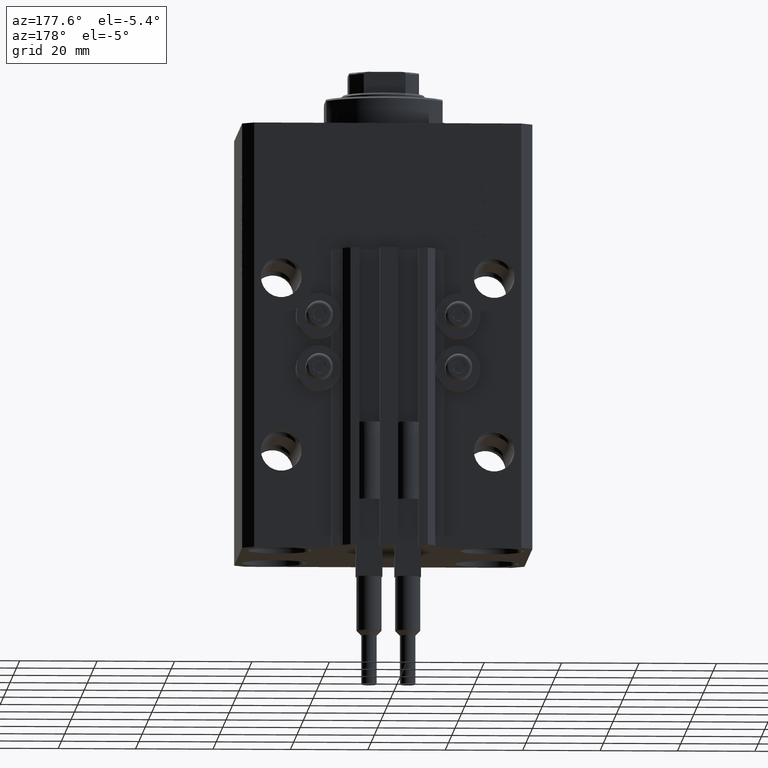
[diagram: clean part render]
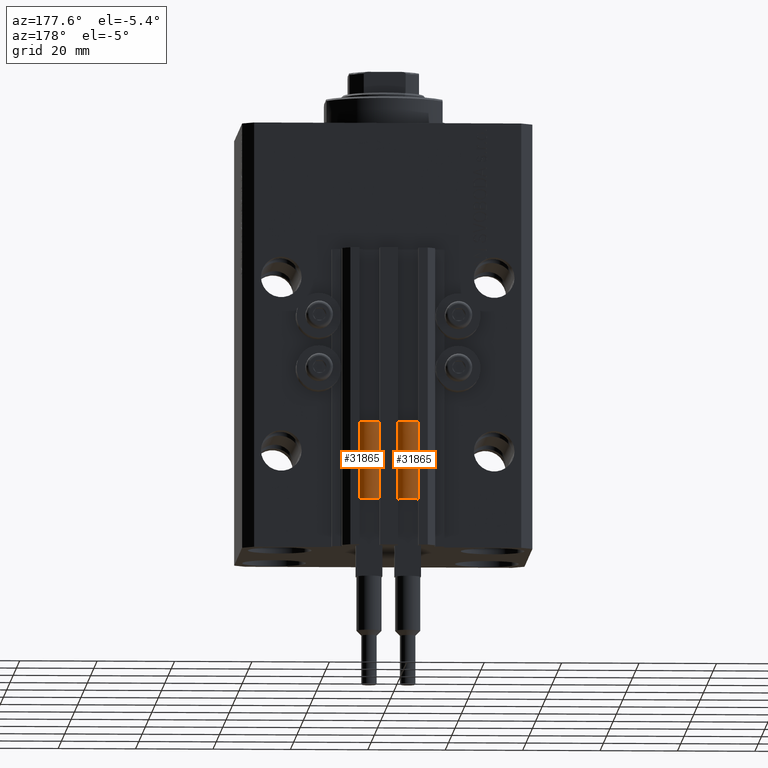
[diagram: same view with one multi-face feature highlighted, each face labeled with its STEP entity id]
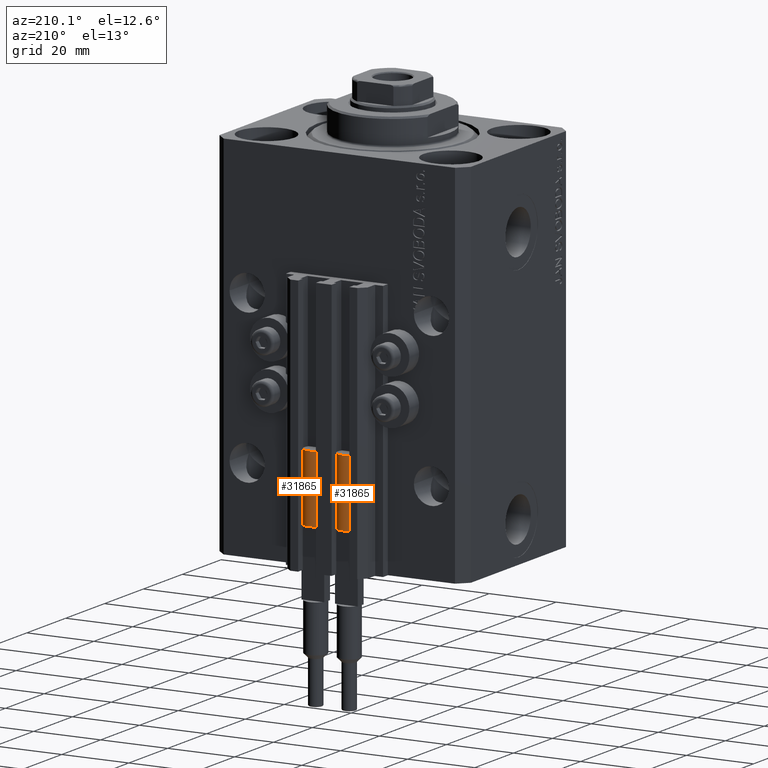
[diagram: same view with one multi-face feature highlighted, each face labeled with its STEP entity id]
A machine part, auxiliary view. The highlighted faces form ONE feature: a constant-radius fillet chain: 2 tangent blend faces with common blend radius 3.4 mm. The faces share edges in the B-rep.
A second angle (auxiliary view) of the same feature is appended — it is thin or edge-on in the first view.
Their STEP definitions:
[1] entity #31865 (Cylinder):
#952 = ORIENTED_EDGE ( 'NONE', *, *, #40758, .F. ) ;
#1548 = FACE_OUTER_BOUND ( 'NONE', #18016, .T. ) ;
#2147 = AXIS2_PLACEMENT_3D ( 'NONE', #43171, #24428, #35410 ) ;
#2510 = CYLINDRICAL_SURFACE ( 'NONE', #2147, 3.400000000000000355 ) ;
#5166 = LINE ( 'NONE', #46299, #41202 ) ;
#5280 = AXIS2_PLACEMENT_3D ( 'NONE', #40405, #7046, #36774 ) ;
#7046 = DIRECTION ( 'NONE',  ( 0.000000000000000000, 0.000000000000000000, 1.000000000000000000 ) ) ;
#7896 = CARTESIAN_POINT ( 'NONE',  ( -3.399999999999999467, -4.915049848600952119E-16, 20.00000000000000000 ) ) ;
#9325 = EDGE_CURVE ( 'NONE', #25384, #10831, #26281, .T. ) ;
#10719 = CIRCLE ( 'NONE', #13030, 3.400000000000000355 ) ;
#10831 = VERTEX_POINT ( 'NONE', #30315 ) ;
#10996 = CARTESIAN_POINT ( 'NONE',  ( -3.400000000000000355, 0.000000000000000000, 20.00000000000000000 ) ) ;
#11345 = CARTESIAN_POINT ( 'NONE',  ( -3.400000000000000355, 0.000000000000000000, 0.000000000000000000 ) ) ;
#12481 = AXIS2_PLACEMENT_3D ( 'NONE', #36822, #35847, #21932 ) ;
#12654 = CARTESIAN_POINT ( 'NONE',  ( 0.000000000000000000, 0.000000000000000000, 20.00000000000000000 ) ) ;
#13030 = AXIS2_PLACEMENT_3D ( 'NONE', #12654, #38720, #15584 ) ;
#14195 = AXIS2_PLACEMENT_3D ( 'NONE', #40780, #22256, #40290 ) ;
#14437 = ORIENTED_EDGE ( 'NONE', *, *, #9325, .F. ) ;
#15584 = DIRECTION ( 'NONE',  ( 1.000000000000000000, 0.000000000000000000, 0.000000000000000000 ) ) ;
#16200 = CARTESIAN_POINT ( 'NONE',  ( 3.400000000000000355, 0.000000000000000000, 20.00000000000000000 ) ) ;
#16902 = VERTEX_POINT ( 'NONE', #17804 ) ;
#17804 = CARTESIAN_POINT ( 'NONE',  ( 3.400000000000000355, 4.163799117101001052E-16, 0.000000000000000000 ) ) ;
#18016 = EDGE_LOOP ( 'NONE', ( #21834, #45693, #20578, #38394, #952, #14437 ) ) ;
#20578 = ORIENTED_EDGE ( 'NONE', *, *, #23290, .T. ) ;
#21022 = CIRCLE ( 'NONE', #12481, 3.400000000000000355 ) ;
#21169 = VERTEX_POINT ( 'NONE', #16200 ) ;
#21834 = ORIENTED_EDGE ( 'NONE', *, *, #31465, .F. ) ;
#21932 = DIRECTION ( 'NONE',  ( 1.000000000000000000, 0.000000000000000000, 0.000000000000000000 ) ) ;
#22256 = DIRECTION ( 'NONE',  ( 0.000000000000000000, 0.000000000000000000, 1.000000000000000000 ) ) ;
#23290 = EDGE_CURVE ( 'NONE', #16902, #32609, #32848, .T. ) ;
#24428 = DIRECTION ( 'NONE',  ( -0.000000000000000000, -0.000000000000000000, -1.000000000000000000 ) ) ;
#25384 = VERTEX_POINT ( 'NONE', #46298 ) ;
#26281 = CIRCLE ( 'NONE', #5280, 3.400000000000000355 ) ;
#27863 = VERTEX_POINT ( 'NONE', #7896 ) ;
#30315 = CARTESIAN_POINT ( 'NONE',  ( -3.051229260478471428, 1.500000000000000000, 20.00000000000000000 ) ) ;
#31465 = EDGE_CURVE ( 'NONE', #21169, #25384, #10719, .T. ) ;
#31865 = ADVANCED_FACE ( 'NONE', ( #1548 ), #2510, .T. ) ;
#32609 = VERTEX_POINT ( 'NONE', #11345 ) ;
#32848 = CIRCLE ( 'NONE', #14195, 3.400000000000000355 ) ;
#33409 = DIRECTION ( 'NONE',  ( -0.000000000000000000, -0.000000000000000000, -1.000000000000000000 ) ) ;
#35410 = DIRECTION ( 'NONE',  ( -1.000000000000000000, 0.000000000000000000, 0.000000000000000000 ) ) ;
#35847 = DIRECTION ( 'NONE',  ( 0.000000000000000000, 0.000000000000000000, 1.000000000000000000 ) ) ;
#36774 = DIRECTION ( 'NONE',  ( 1.000000000000000000, 0.000000000000000000, 0.000000000000000000 ) ) ;
#36822 = CARTESIAN_POINT ( 'NONE',  ( 0.000000000000000000, 0.000000000000000000, 20.00000000000000000 ) ) ;
#38004 = EDGE_CURVE ( 'NONE', #21169, #16902, #5166, .T. ) ;
#38394 = ORIENTED_EDGE ( 'NONE', *, *, #40831, .F. ) ;
#38720 = DIRECTION ( 'NONE',  ( 0.000000000000000000, 0.000000000000000000, 1.000000000000000000 ) ) ;
#39013 = DIRECTION ( 'NONE',  ( -0.000000000000000000, -0.000000000000000000, -1.000000000000000000 ) ) ;
#40290 = DIRECTION ( 'NONE',  ( 1.000000000000000000, 0.000000000000000000, 0.000000000000000000 ) ) ;
#40405 = CARTESIAN_POINT ( 'NONE',  ( 0.000000000000000000, 0.000000000000000000, 20.00000000000000000 ) ) ;
#40758 = EDGE_CURVE ( 'NONE', #10831, #27863, #21022, .T. ) ;
#40780 = CARTESIAN_POINT ( 'NONE',  ( 0.000000000000000000, 0.000000000000000000, 0.000000000000000000 ) ) ;
#40831 = EDGE_CURVE ( 'NONE', #27863, #32609, #41658, .T. ) ;
#41202 = VECTOR ( 'NONE', #39013, 1000.000000000000000 ) ;
#41275 = VECTOR ( 'NONE', #33409, 1000.000000000000000 ) ;
#41658 = LINE ( 'NONE', #10996, #41275 ) ;
#43171 = CARTESIAN_POINT ( 'NONE',  ( 0.000000000000000000, 0.000000000000000000, 20.00000000000000000 ) ) ;
#45693 = ORIENTED_EDGE ( 'NONE', *, *, #38004, .T. ) ;
#46298 = CARTESIAN_POINT ( 'NONE',  ( 3.051229260478471428, 1.500000000000000000, 20.00000000000000000 ) ) ;
#46299 = CARTESIAN_POINT ( 'NONE',  ( 3.400000000000000355, 4.163799117101001052E-16, 20.00000000000000000 ) ) ;
[2] entity #31865 (Cylinder):
#952 = ORIENTED_EDGE ( 'NONE', *, *, #40758, .F. ) ;
#1548 = FACE_OUTER_BOUND ( 'NONE', #18016, .T. ) ;
#2147 = AXIS2_PLACEMENT_3D ( 'NONE', #43171, #24428, #35410 ) ;
#2510 = CYLINDRICAL_SURFACE ( 'NONE', #2147, 3.400000000000000355 ) ;
#5166 = LINE ( 'NONE', #46299, #41202 ) ;
#5280 = AXIS2_PLACEMENT_3D ( 'NONE', #40405, #7046, #36774 ) ;
#7046 = DIRECTION ( 'NONE',  ( 0.000000000000000000, 0.000000000000000000, 1.000000000000000000 ) ) ;
#7896 = CARTESIAN_POINT ( 'NONE',  ( -3.399999999999999467, -4.915049848600952119E-16, 20.00000000000000000 ) ) ;
#9325 = EDGE_CURVE ( 'NONE', #25384, #10831, #26281, .T. ) ;
#10719 = CIRCLE ( 'NONE', #13030, 3.400000000000000355 ) ;
#10831 = VERTEX_POINT ( 'NONE', #30315 ) ;
#10996 = CARTESIAN_POINT ( 'NONE',  ( -3.400000000000000355, 0.000000000000000000, 20.00000000000000000 ) ) ;
#11345 = CARTESIAN_POINT ( 'NONE',  ( -3.400000000000000355, 0.000000000000000000, 0.000000000000000000 ) ) ;
#12481 = AXIS2_PLACEMENT_3D ( 'NONE', #36822, #35847, #21932 ) ;
#12654 = CARTESIAN_POINT ( 'NONE',  ( 0.000000000000000000, 0.000000000000000000, 20.00000000000000000 ) ) ;
#13030 = AXIS2_PLACEMENT_3D ( 'NONE', #12654, #38720, #15584 ) ;
#14195 = AXIS2_PLACEMENT_3D ( 'NONE', #40780, #22256, #40290 ) ;
#14437 = ORIENTED_EDGE ( 'NONE', *, *, #9325, .F. ) ;
#15584 = DIRECTION ( 'NONE',  ( 1.000000000000000000, 0.000000000000000000, 0.000000000000000000 ) ) ;
#16200 = CARTESIAN_POINT ( 'NONE',  ( 3.400000000000000355, 0.000000000000000000, 20.00000000000000000 ) ) ;
#16902 = VERTEX_POINT ( 'NONE', #17804 ) ;
#17804 = CARTESIAN_POINT ( 'NONE',  ( 3.400000000000000355, 4.163799117101001052E-16, 0.000000000000000000 ) ) ;
#18016 = EDGE_LOOP ( 'NONE', ( #21834, #45693, #20578, #38394, #952, #14437 ) ) ;
#20578 = ORIENTED_EDGE ( 'NONE', *, *, #23290, .T. ) ;
#21022 = CIRCLE ( 'NONE', #12481, 3.400000000000000355 ) ;
#21169 = VERTEX_POINT ( 'NONE', #16200 ) ;
#21834 = ORIENTED_EDGE ( 'NONE', *, *, #31465, .F. ) ;
#21932 = DIRECTION ( 'NONE',  ( 1.000000000000000000, 0.000000000000000000, 0.000000000000000000 ) ) ;
#22256 = DIRECTION ( 'NONE',  ( 0.000000000000000000, 0.000000000000000000, 1.000000000000000000 ) ) ;
#23290 = EDGE_CURVE ( 'NONE', #16902, #32609, #32848, .T. ) ;
#24428 = DIRECTION ( 'NONE',  ( -0.000000000000000000, -0.000000000000000000, -1.000000000000000000 ) ) ;
#25384 = VERTEX_POINT ( 'NONE', #46298 ) ;
#26281 = CIRCLE ( 'NONE', #5280, 3.400000000000000355 ) ;
#27863 = VERTEX_POINT ( 'NONE', #7896 ) ;
#30315 = CARTESIAN_POINT ( 'NONE',  ( -3.051229260478471428, 1.500000000000000000, 20.00000000000000000 ) ) ;
#31465 = EDGE_CURVE ( 'NONE', #21169, #25384, #10719, .T. ) ;
#31865 = ADVANCED_FACE ( 'NONE', ( #1548 ), #2510, .T. ) ;
#32609 = VERTEX_POINT ( 'NONE', #11345 ) ;
#32848 = CIRCLE ( 'NONE', #14195, 3.400000000000000355 ) ;
#33409 = DIRECTION ( 'NONE',  ( -0.000000000000000000, -0.000000000000000000, -1.000000000000000000 ) ) ;
#35410 = DIRECTION ( 'NONE',  ( -1.000000000000000000, 0.000000000000000000, 0.000000000000000000 ) ) ;
#35847 = DIRECTION ( 'NONE',  ( 0.000000000000000000, 0.000000000000000000, 1.000000000000000000 ) ) ;
#36774 = DIRECTION ( 'NONE',  ( 1.000000000000000000, 0.000000000000000000, 0.000000000000000000 ) ) ;
#36822 = CARTESIAN_POINT ( 'NONE',  ( 0.000000000000000000, 0.000000000000000000, 20.00000000000000000 ) ) ;
#38004 = EDGE_CURVE ( 'NONE', #21169, #16902, #5166, .T. ) ;
#38394 = ORIENTED_EDGE ( 'NONE', *, *, #40831, .F. ) ;
#38720 = DIRECTION ( 'NONE',  ( 0.000000000000000000, 0.000000000000000000, 1.000000000000000000 ) ) ;
#39013 = DIRECTION ( 'NONE',  ( -0.000000000000000000, -0.000000000000000000, -1.000000000000000000 ) ) ;
#40290 = DIRECTION ( 'NONE',  ( 1.000000000000000000, 0.000000000000000000, 0.000000000000000000 ) ) ;
#40405 = CARTESIAN_POINT ( 'NONE',  ( 0.000000000000000000, 0.000000000000000000, 20.00000000000000000 ) ) ;
#40758 = EDGE_CURVE ( 'NONE', #10831, #27863, #21022, .T. ) ;
#40780 = CARTESIAN_POINT ( 'NONE',  ( 0.000000000000000000, 0.000000000000000000, 0.000000000000000000 ) ) ;
#40831 = EDGE_CURVE ( 'NONE', #27863, #32609, #41658, .T. ) ;
#41202 = VECTOR ( 'NONE', #39013, 1000.000000000000000 ) ;
#41275 = VECTOR ( 'NONE', #33409, 1000.000000000000000 ) ;
#41658 = LINE ( 'NONE', #10996, #41275 ) ;
#43171 = CARTESIAN_POINT ( 'NONE',  ( 0.000000000000000000, 0.000000000000000000, 20.00000000000000000 ) ) ;
#45693 = ORIENTED_EDGE ( 'NONE', *, *, #38004, .T. ) ;
#46298 = CARTESIAN_POINT ( 'NONE',  ( 3.051229260478471428, 1.500000000000000000, 20.00000000000000000 ) ) ;
#46299 = CARTESIAN_POINT ( 'NONE',  ( 3.400000000000000355, 4.163799117101001052E-16, 20.00000000000000000 ) ) ;